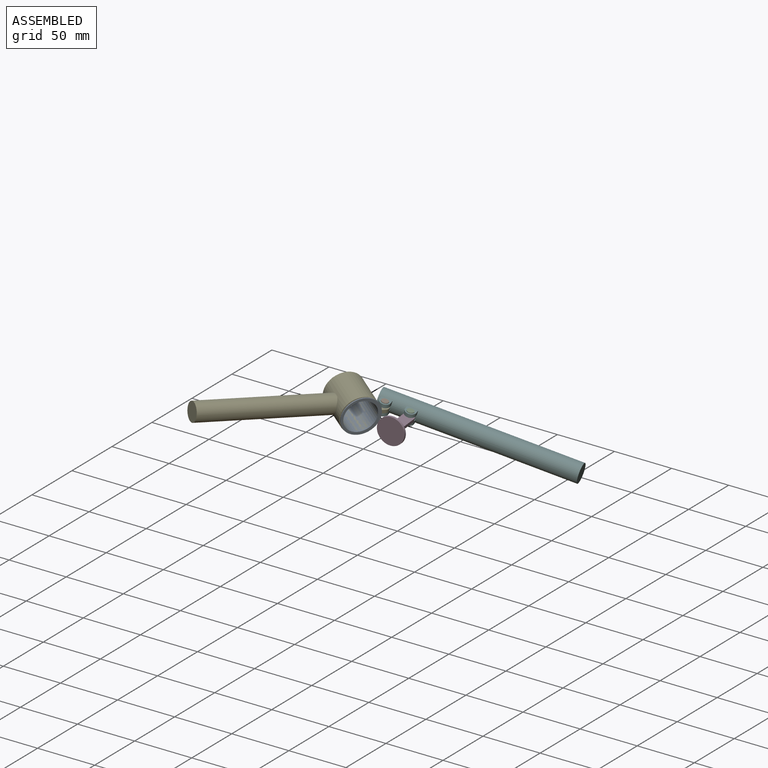
[diagram: assembled view]
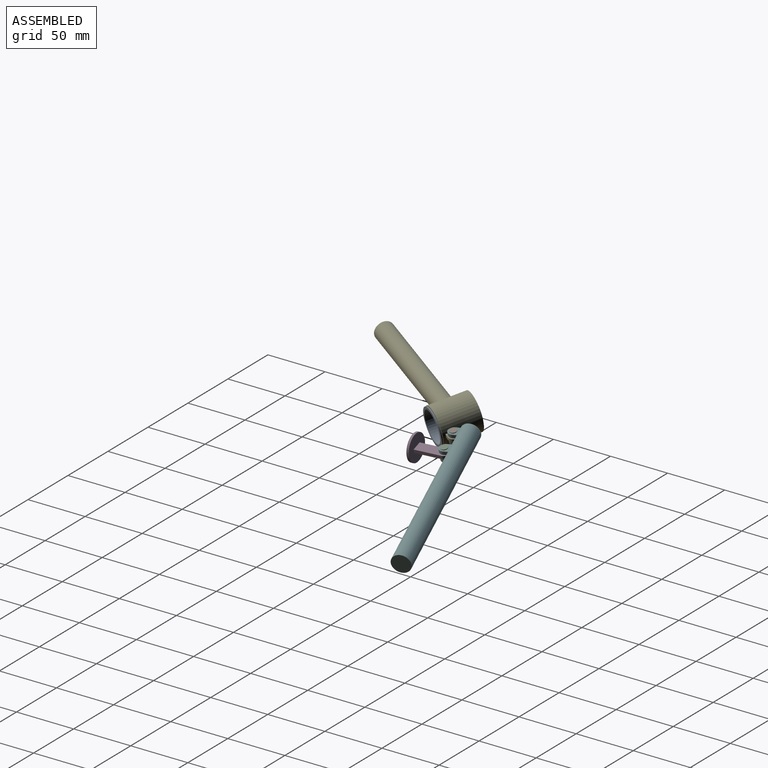
[diagram: assembled view, second angle]
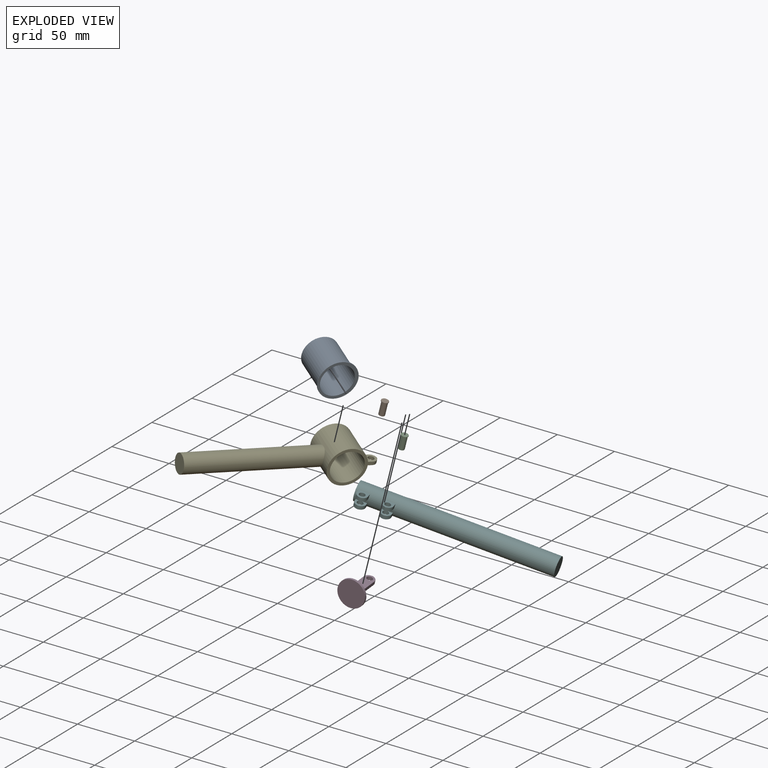
[diagram: exploded view]
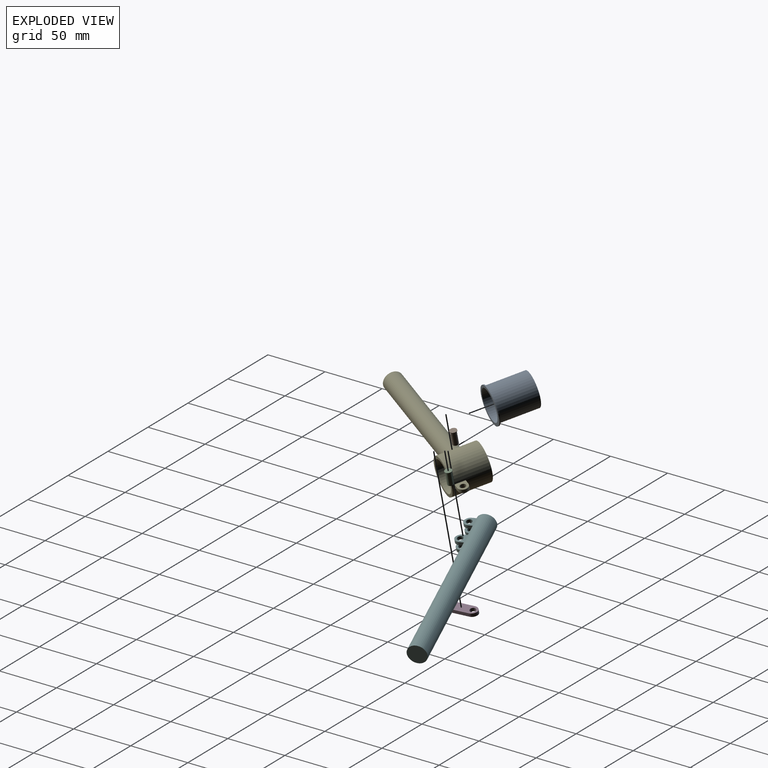
[diagram: exploded view, second angle]
ASSEMBLY  parts=6 mates=5
PART A: 19 faces, bbox 32x32x34 mm
  f0: cylinder r=14.5mm len=33mm, axis (0,0,-1), area 3006.5mm2, adj f1,f18
  f1: plane 29x29mm, normal (0,0,-1), area 622.8mm2, adj f0,f5,f6,f7,f8,f9,f10,f11
  f2: plane 27x27mm, normal (0,0,1), area 534.9mm2, adj f3,f5,f6,f7,f8,f9,f10,f11
  f3: cylinder r=13.5mm len=33mm, axis (0,0,-1), area 2799.2mm2, adj f2,f4
  f4: plane 32x32mm, normal (0,0,1), area 231.7mm2, adj f3,f17
  f5: cylinder r=1mm len=2mm, axis (0,0,-1), area 6.3mm2, adj f1,f2
  f6: cylinder r=1mm len=2mm, axis (0,0,-1), area 6.3mm2, adj f1,f2
  f7: cylinder r=1mm len=2mm, axis (0,0,-1), area 6.3mm2, adj f1,f2
  f8: cylinder r=1mm len=2mm, axis (0,0,-1), area 6.3mm2, adj f1,f2
  f9: cylinder r=1mm len=2mm, axis (0,0,-1), area 6.3mm2, adj f1,f2
  f10: cylinder r=1mm len=2mm, axis (0,0,-1), area 6.3mm2, adj f1,f2
  f11: cylinder r=1mm len=2mm, axis (0,0,-1), area 6.3mm2, adj f1,f2
  f12: cylinder r=1mm len=2mm, axis (0,0,-1), area 6.3mm2, adj f1,f2
  f13: cylinder r=1mm len=2mm, axis (0,0,-1), area 6.3mm2, adj f1,f2
  f14: cylinder r=1mm len=2mm, axis (0,0,-1), area 6.3mm2, adj f1,f2
  f15: cylinder r=1mm len=2mm, axis (0,0,-1), area 6.3mm2, adj f1,f2
  f16: cylinder r=1mm len=2mm, axis (0,0,-1), area 6.3mm2, adj f1,f2
  f17: cylinder r=16mm len=32mm, axis (0,0,1), area 100.5mm2, adj f4,f18
  f18: plane 32x32mm, normal (0,0,-1), area 143.7mm2, adj f0,f17
PART B: 5 faces, bbox 6x12x6 mm
  f0: cylinder r=2.5mm len=11.5mm, axis (0,1,0), area 180.6mm2, adj f1,f3
  f1: plane 5x5mm, normal (0,-1,0), area 19.6mm2, adj f0
  f2: cylinder r=3mm len=6mm, axis (0,1,0), area 9.4mm2, adj f3,f4
  f3: plane 6x6mm, normal (0,-1,0), area 8.6mm2, adj f0,f2
  f4: plane 6x6mm, normal (0,1,0), area 28.3mm2, adj f2
PART C: same geometry as B
PART D: 10 faces, bbox 23x23x30 mm
  f0: cylinder r=11.5mm len=23mm, axis (0,0,-1), area 144.5mm2, adj f1,f2
  f1: plane 23x23mm, normal (0,0,1), area 415.5mm2, adj f0
  f2: plane 23x23mm, normal (0,0,-1), area 388.5mm2, adj f0,f3,f4,f5,f6
  f3: plane 27.98x9mm, normal (0,-1,0), area 221.6mm2, adj f2,f4,f6,f7,f8,f9
  f4: plane 23x3mm, normal (-1,0,0), area 69mm2, adj f2,f3,f5,f9
  f5: plane 27.98x9mm, normal (0,1,0), area 221.6mm2, adj f2,f4,f6,f7,f8,f9
  f6: plane 23x3mm, normal (1,0,0), area 69mm2, adj f2,f3,f5,f8
  f7: cylinder r=2.5mm len=5mm, axis (0,-1,0), area 47.1mm2, adj f3,f5
  f8: cylinder r=5mm len=4.98mm, axis (0,1,0), area 22.1mm2, adj f3,f5,f6,f9
  f9: cylinder r=5mm len=4.98mm, axis (0,-1,0), area 22.1mm2, adj f3,f4,f5,f8
PART E: 15 faces, bbox 32x151.9x32 mm
  f0: cylinder r=16mm len=32mm, axis (0,0,-1), area 2985.6mm2, adj f1,f2,f3,f6,f7,f8,f9,f10
  f1: cylinder r=8mm len=112mm, axis (0,1,0), area 5585.8mm2, adj f0,f2,f3,f4
  f2: plane 5.31x0.45mm, normal (0,1,0), area 1.6mm2, adj f0,f1
  f3: plane 5.31x0.45mm, normal (0,1,0), area 1.6mm2, adj f0,f1
  f4: plane 16x16mm, normal (0,-1,0), area 201.1mm2, adj f1
  f5: cylinder r=13.5mm len=32mm, axis (0,0,-1), area 2714.3mm2, adj f6,f7
  f6: plane 32x32mm, normal (0,0,1), area 231.7mm2, adj f0,f5
  f7: plane 32x32mm, normal (0,0,-1), area 231.7mm2, adj f0,f5
  f8: plane 9.89x9mm, normal (1,0,0), area 58.9mm2, adj f0,f10,f11,f12,f13,f14
  f9: plane 9.8x9mm, normal (-1,0,0), area 58.1mm2, adj f0,f10,f11,f12,f13,f14
  f10: plane 4.92x3mm, normal (0,0,1), area 14.5mm2, adj f0,f8,f9,f14
  f11: plane 4.92x3mm, normal (0,0,-1), area 14.5mm2, adj f0,f8,f9,f13
  f12: cylinder r=2.5mm len=5mm, axis (-1,0,0), area 47.1mm2, adj f8,f9
  f13: cylinder r=5mm len=4.98mm, axis (-1,0,0), area 22.1mm2, adj f8,f9,f11,f14
  f14: cylinder r=5mm len=4.98mm, axis (1,0,0), area 22.1mm2, adj f8,f9,f10,f13
PART F: 32 faces, bbox 23x157x16 mm
  f0: cylinder r=8mm len=157mm, axis (0,1,0), area 7768.4mm2, adj f1,f2,f3,f4,f5,f6,f7,f8
  f1: plane 16x16mm, normal (0,-1,0), area 201.1mm2, adj f0
  f2: plane 16x16mm, normal (0,1,0), area 201.1mm2, adj f0
  f3: plane 9x7.25mm, normal (0,0,-1), area 35.1mm2, adj f0,f5,f6,f20,f30,f31
  f4: plane 9x8.78mm, normal (0,0,1), area 48.9mm2, adj f0,f5,f6,f20,f30,f31
  f5: plane 3.8x3mm, normal (0,-1,0), area 8.7mm2, adj f0,f3,f4,f30
  f6: plane 3.8x3mm, normal (0,1,0), area 8.7mm2, adj f0,f3,f4,f31
  f7: plane 9x7.25mm, normal (0,0,-1), area 35.1mm2, adj f0,f9,f10,f23,f28,f29
  f8: plane 9x8.78mm, normal (0,0,1), area 48.9mm2, adj f0,f9,f10,f23,f28,f29
  f9: plane 3.8x3mm, normal (0,1,0), area 8.7mm2, adj f0,f7,f8,f29
  f10: plane 3.8x3mm, normal (0,-1,0), area 8.7mm2, adj f0,f7,f8,f28
  f11: plane 9x7.25mm, normal (0,0,1), area 35.1mm2, adj f0,f13,f14,f19,f26,f27
  f12: plane 9x8.78mm, normal (0,0,-1), area 48.9mm2, adj f0,f13,f14,f19,f26,f27
  f13: plane 3.8x3mm, normal (0,-1,0), area 8.7mm2, adj f0,f11,f12,f27
  f14: plane 3.8x3mm, normal (0,1,0), area 8.7mm2, adj f0,f11,f12,f26
  f15: plane 9x7.25mm, normal (0,0,1), area 35.1mm2, adj f0,f17,f18,f22,f24,f25
  f16: plane 9x8.78mm, normal (0,0,-1), area 48.9mm2, adj f0,f17,f18,f22,f24,f25
  f17: plane 3.8x3mm, normal (0,1,0), area 8.7mm2, adj f0,f15,f16,f24
  f18: plane 3.8x3mm, normal (0,-1,0), area 8.7mm2, adj f0,f15,f16,f25
  f19: cylinder r=2.5mm len=5mm, axis (0,0,1), area 47.1mm2, adj f11,f12
  f20: cylinder r=2.5mm len=5mm, axis (0,0,1), area 47.1mm2, adj f3,f4
  f21: cylinder r=2.5mm len=1.55mm, axis (0,0,1), area 1.1mm2, adj f0
  f22: cylinder r=2.5mm len=5mm, axis (0,0,1), area 47.1mm2, adj f15,f16
  f23: cylinder r=2.5mm len=5mm, axis (0,0,1), area 47.1mm2, adj f7,f8
  f24: cylinder r=5mm len=4.98mm, axis (0,0,-1), area 22.1mm2, adj f15,f16,f17,f25
  f25: cylinder r=5mm len=4.98mm, axis (0,0,1), area 22.1mm2, adj f15,f16,f18,f24
  f26: cylinder r=5mm len=4.98mm, axis (0,0,-1), area 22.1mm2, adj f11,f12,f14,f27
  f27: cylinder r=5mm len=4.98mm, axis (0,0,1), area 22.1mm2, adj f11,f12,f13,f26
  f28: cylinder r=5mm len=4.98mm, axis (0,0,1), area 22.1mm2, adj f7,f8,f10,f29
  f29: cylinder r=5mm len=4.98mm, axis (0,0,-1), area 22.1mm2, adj f7,f8,f9,f28
  f30: cylinder r=5mm len=4.98mm, axis (0,0,1), area 22.1mm2, adj f3,f4,f5,f31
  f31: cylinder r=5mm len=4.98mm, axis (0,0,-1), area 22.1mm2, adj f3,f4,f6,f30
PLACE A rot(axis=(0.78,-0.17,0.61),154.9deg) t=(-14.48,31.51,36.61)mm
PLACE B rot(axis=(0.97,0.25,0.01),93.8deg) t=(34.99,-23.3,31.07)mm
PLACE C rot(axis=(0.97,0.25,0.01),93.8deg) t=(53.73,-18.1,26.36)mm
PLACE D rot(axis=(0.12,-0.71,0.7),173.3deg) t=(38.23,17.36,23.84)mm
PLACE E rot(axis=(-0.33,-0.91,-0.26),81.4deg) t=(-8.19,10.79,35.01)mm
PLACE F rot(axis=(0.12,0.09,0.99),106.1deg) t=(9.04,44.09,31.91)mm fixed
MATE fastened B.f0 <-> F.f19  axis (0.24,0,0.97) through (19.06,35.73,34.6)mm
MATE revolute D.f7 <-> C.f0  axis (0.24,0,0.97) through (36.38,40.93,24.32)mm
MATE fastened C.f0 <-> F.f22  axis (0.24,0,0.97) through (37.79,40.93,29.9)mm
MATE fastened A.f0 <-> E.f0  axis (-0.82,0.53,0.21) through (-0.92,22.75,33.19)mm
MATE revolute E.f12 <-> B.f0  axis (-0.24,0,-0.97) through (17.65,35.73,29.03)mm
